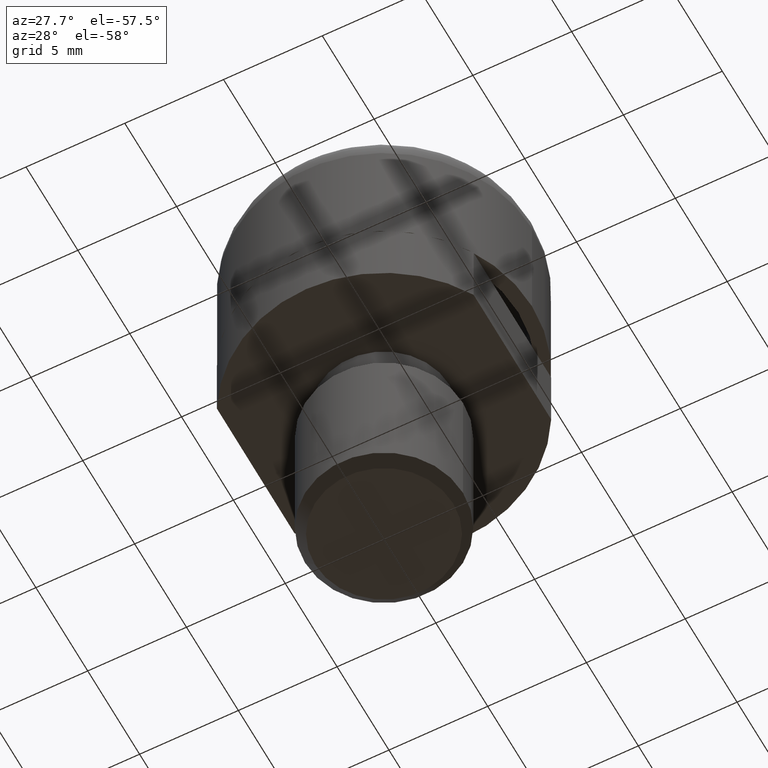
[diagram: clean part render]
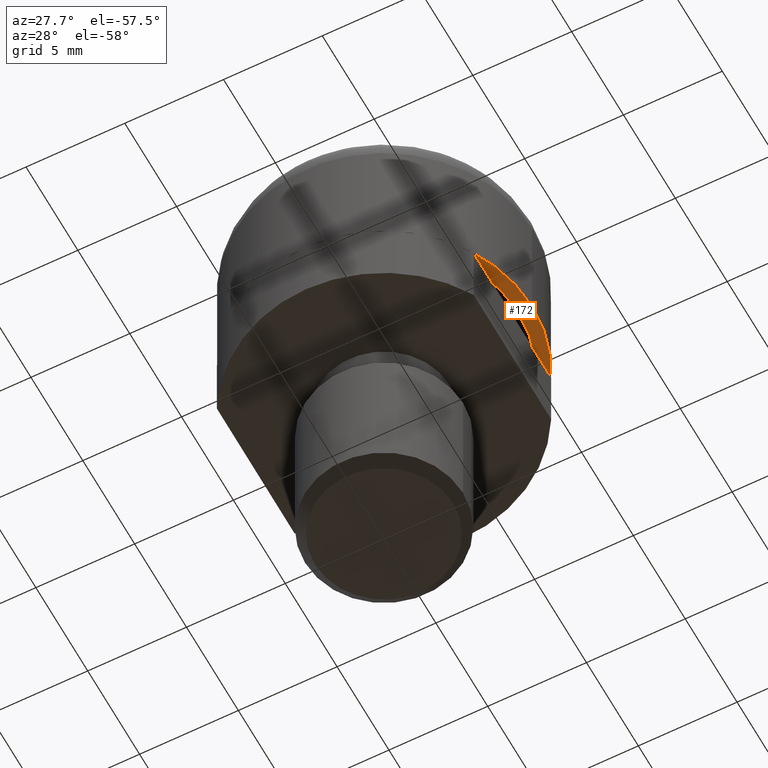
[diagram: same view with one face highlighted and labeled with its STEP entity id]
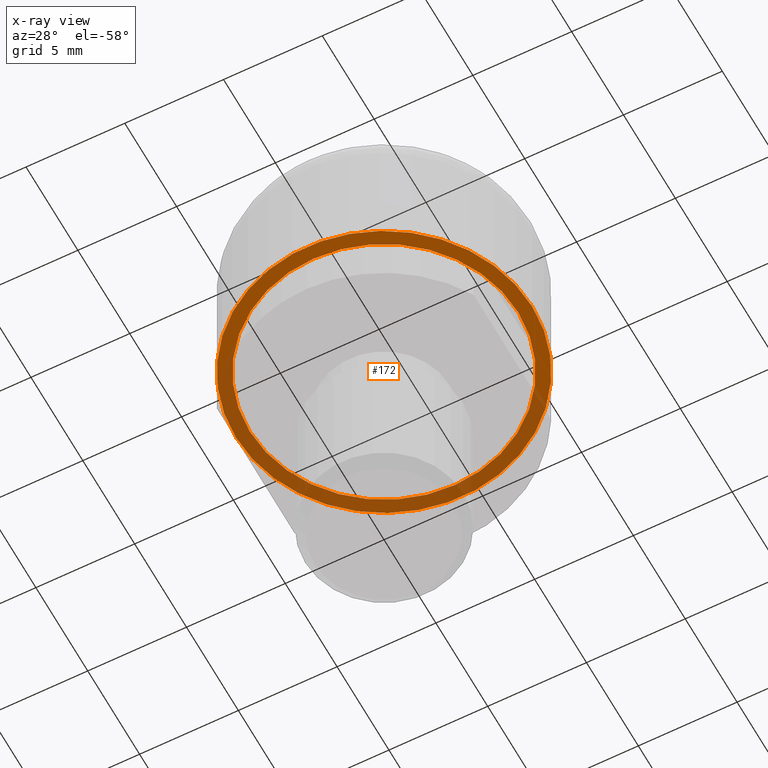
[diagram: x-ray of the same camera — body ghosted, the highlighted face saturated]
A machine part, auxiliary view. The second image highlights one B-rep face of the part: STEP entity #172.
The next image is the same camera in x-ray: the body ghosted, the highlighted face saturated — about 48% of this face is hidden behind the body in this view.
In plain terms, the highlighted planar face has unit normal (0, 0, 1).
Its self-contained STEP definition (entity closure, byte-faithful):
#20 = EDGE_CURVE ( 'NONE', #108, #213, #869, .T. ) ;
#61 = AXIS2_PLACEMENT_3D ( 'NONE', #74, #531, #727 ) ;
#65 = CARTESIAN_POINT ( 'NONE',  ( 0.0000000000000000000, 0.0000000000000000000, 0.0000000000000000000 ) ) ;
#74 = CARTESIAN_POINT ( 'NONE',  ( 7.500000000000000000, 0.0000000000000000000, 0.0000000000000000000 ) ) ;
#108 = VERTEX_POINT ( 'NONE', #439 ) ;
#121 = EDGE_CURVE ( 'NONE', #213, #108, #846, .T. ) ;
#128 = AXIS2_PLACEMENT_3D ( 'NONE', #296, #642, #351 ) ;
#133 = VERTEX_POINT ( 'NONE', #665 ) ;
#172 = ADVANCED_FACE ( 'NONE', ( #225, #588 ), #659, .F. ) ;
#213 = VERTEX_POINT ( 'NONE', #594 ) ;
#215 = EDGE_LOOP ( 'NONE', ( #782, #533 ) ) ;
#225 = FACE_BOUND ( 'NONE', #500, .T. ) ;
#237 = ORIENTED_EDGE ( 'NONE', *, *, #20, .F. ) ;
#248 = DIRECTION ( 'NONE',  ( -1.000000000000000000, 0.0000000000000000000, 0.0000000000000000000 ) ) ;
#275 = ORIENTED_EDGE ( 'NONE', *, *, #121, .F. ) ;
#296 = CARTESIAN_POINT ( 'NONE',  ( 0.0000000000000000000, 0.0000000000000000000, 0.0000000000000000000 ) ) ;
#351 = DIRECTION ( 'NONE',  ( -1.000000000000000000, 0.0000000000000000000, 0.0000000000000000000 ) ) ;
#359 = VERTEX_POINT ( 'NONE', #613 ) ;
#360 = DIRECTION ( 'NONE',  ( 0.0000000000000000000, 0.0000000000000000000, -1.000000000000000000 ) ) ;
#395 = DIRECTION ( 'NONE',  ( 0.0000000000000000000, 0.0000000000000000000, -1.000000000000000000 ) ) ;
#403 = DIRECTION ( 'NONE',  ( 0.0000000000000000000, 0.0000000000000000000, -1.000000000000000000 ) ) ;
#421 = CIRCLE ( 'NONE', #757, 7.500000000000000000 ) ;
#431 = DIRECTION ( 'NONE',  ( -1.000000000000000000, 0.0000000000000000000, 0.0000000000000000000 ) ) ;
#439 = CARTESIAN_POINT ( 'NONE',  ( 6.799999999999999800, 8.327598234202001100E-016, 0.0000000000000000000 ) ) ;
#481 = CARTESIAN_POINT ( 'NONE',  ( 0.0000000000000000000, 0.0000000000000000000, 0.0000000000000000000 ) ) ;
#500 = EDGE_LOOP ( 'NONE', ( #275, #237 ) ) ;
#531 = DIRECTION ( 'NONE',  ( 0.0000000000000000000, 0.0000000000000000000, 1.000000000000000000 ) ) ;
#533 = ORIENTED_EDGE ( 'NONE', *, *, #932, .T. ) ;
#588 = FACE_OUTER_BOUND ( 'NONE', #215, .T. ) ;
#594 = CARTESIAN_POINT ( 'NONE',  ( -6.799999999999999800, 0.0000000000000000000, 0.0000000000000000000 ) ) ;
#596 = EDGE_CURVE ( 'NONE', #133, #359, #421, .T. ) ;
#613 = CARTESIAN_POINT ( 'NONE',  ( 7.500000000000000000, 9.184850993605147900E-016, 0.0000000000000000000 ) ) ;
#615 = AXIS2_PLACEMENT_3D ( 'NONE', #481, #403, #699 ) ;
#642 = DIRECTION ( 'NONE',  ( 0.0000000000000000000, 0.0000000000000000000, -1.000000000000000000 ) ) ;
#659 = PLANE ( 'NONE',  #61 ) ;
#665 = CARTESIAN_POINT ( 'NONE',  ( -7.500000000000000000, 0.0000000000000000000, 0.0000000000000000000 ) ) ;
#699 = DIRECTION ( 'NONE',  ( -1.000000000000000000, 0.0000000000000000000, 0.0000000000000000000 ) ) ;
#727 = DIRECTION ( 'NONE',  ( 1.000000000000000000, 0.0000000000000000000, 0.0000000000000000000 ) ) ;
#757 = AXIS2_PLACEMENT_3D ( 'NONE', #910, #395, #248 ) ;
#779 = AXIS2_PLACEMENT_3D ( 'NONE', #65, #360, #431 ) ;
#782 = ORIENTED_EDGE ( 'NONE', *, *, #596, .T. ) ;
#846 = CIRCLE ( 'NONE', #128, 6.799999999999999800 ) ;
#869 = CIRCLE ( 'NONE', #779, 6.799999999999999800 ) ;
#907 = CIRCLE ( 'NONE', #615, 7.500000000000000000 ) ;
#910 = CARTESIAN_POINT ( 'NONE',  ( 0.0000000000000000000, 0.0000000000000000000, 0.0000000000000000000 ) ) ;
#932 = EDGE_CURVE ( 'NONE', #359, #133, #907, .T. ) ;